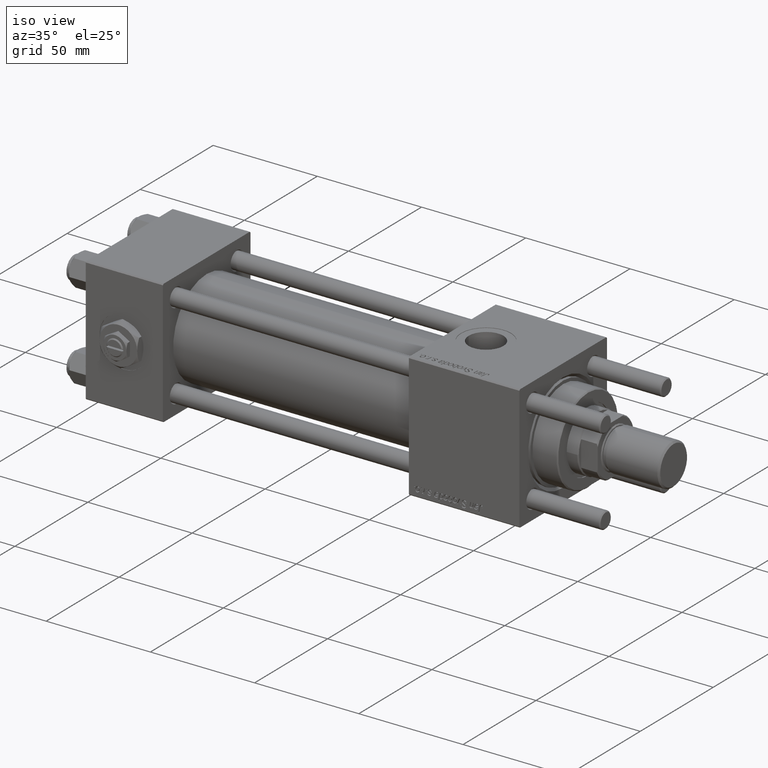
[diagram: clean part render]
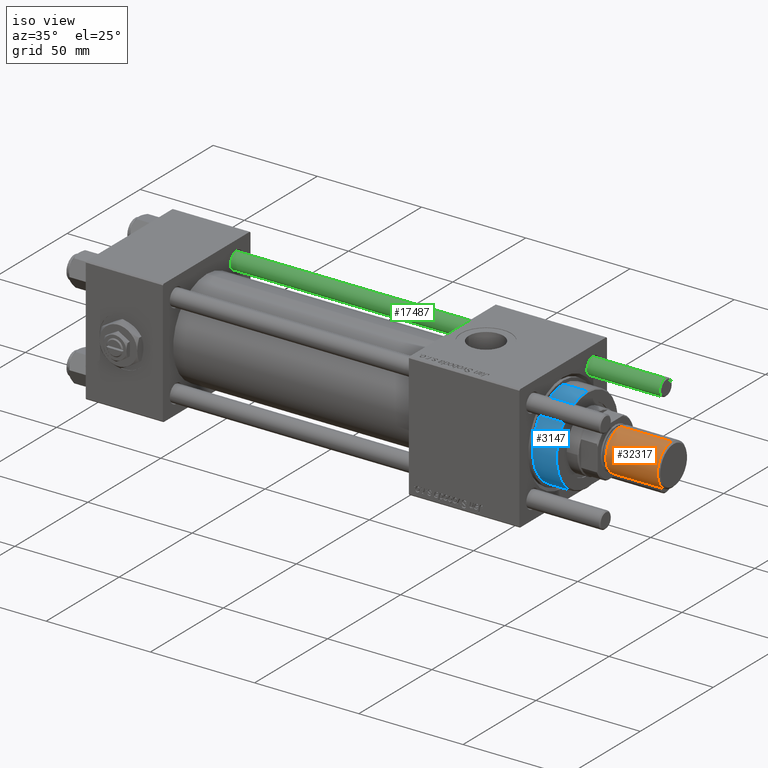
[diagram: same view with three faces highlighted in distinct colors, each labeled with its STEP entity id]
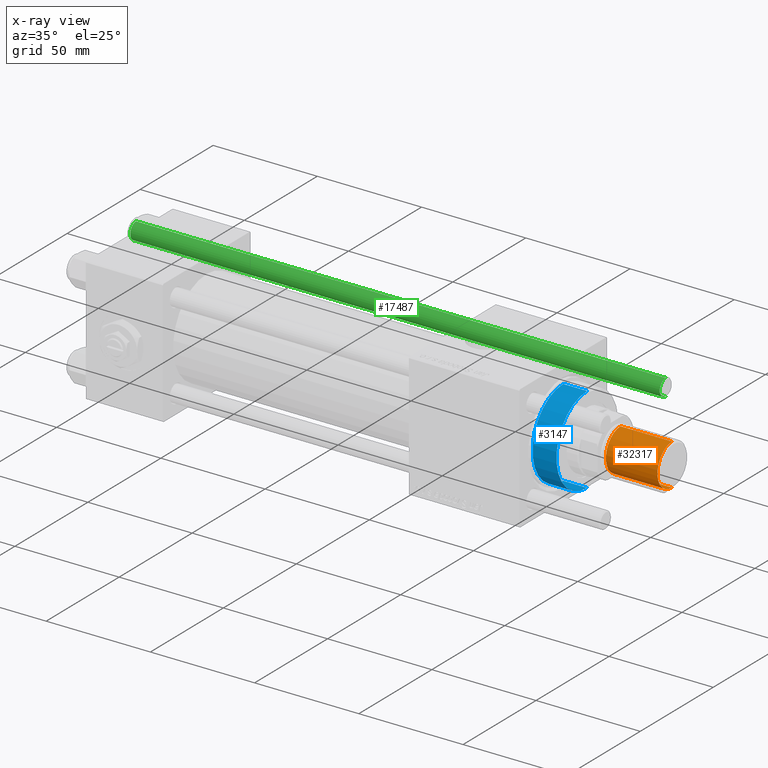
[diagram: x-ray of the same camera — body ghosted, the three highlighted faces saturated]
A machine part, iso view with three faces highlighted in distinct colors.
The next image is the same camera in x-ray (body ghosted, the three faces saturated) — at least one of them is partly hidden behind the body in this view.
Their STEP definitions:

[orange] entity #32317 — the highlighted cylindrical surface (edge-blend (fillet) strip) has radius 10 mm, axis along (1, -0, -0).
#441 = CIRCLE ( 'NONE', #5343, 10.00000000000000000 ) ;
#880 = VERTEX_POINT ( 'NONE', #15549 ) ;
#3507 = VECTOR ( 'NONE', #28050, 1000.000000000000000 ) ;
#3972 = DIRECTION ( 'NONE',  ( 0.000000000000000000, 0.000000000000000000, 1.000000000000000000 ) ) ;
#4390 = DIRECTION ( 'NONE',  ( -1.000000000000000000, 0.000000000000000000, 0.000000000000000000 ) ) ;
#5343 = AXIS2_PLACEMENT_3D ( 'NONE', #30270, #7005, #43388 ) ;
#7005 = DIRECTION ( 'NONE',  ( -0.000000000000000000, -0.000000000000000000, 1.000000000000000000 ) ) ;
#7929 = VERTEX_POINT ( 'NONE', #56062 ) ;
#8610 = FACE_OUTER_BOUND ( 'NONE', #16246, .T. ) ;
#12353 = LINE ( 'NONE', #30560, #12866 ) ;
#12866 = VECTOR ( 'NONE', #38917, 1000.000000000000000 ) ;
#13934 = CIRCLE ( 'NONE', #57744, 10.00000000000000000 ) ;
#15163 = VERTEX_POINT ( 'NONE', #39935 ) ;
#15549 = CARTESIAN_POINT ( 'NONE',  ( 10.00000000000000000, 1.224646799147353256E-15, 0.8000000000000055955 ) ) ;
#16246 = EDGE_LOOP ( 'NONE', ( #37812, #55193, #24467, #40796 ) ) ;
#16779 = AXIS2_PLACEMENT_3D ( 'NONE', #39941, #17282, #4390 ) ;
#17282 = DIRECTION ( 'NONE',  ( -0.000000000000000000, -0.000000000000000000, -1.000000000000000000 ) ) ;
#18154 = CYLINDRICAL_SURFACE ( 'NONE', #16779, 10.00000000000000000 ) ;
#21636 = CARTESIAN_POINT ( 'NONE',  ( -10.00000000000000000, 0.000000000000000000, 25.50000000000000000 ) ) ;
#22203 = DIRECTION ( 'NONE',  ( 1.000000000000000000, 0.000000000000000000, 0.000000000000000000 ) ) ;
#24467 = ORIENTED_EDGE ( 'NONE', *, *, #34359, .T. ) ;
#27202 = EDGE_CURVE ( 'NONE', #38603, #15163, #13934, .T. ) ;
#28050 = DIRECTION ( 'NONE',  ( -0.000000000000000000, -0.000000000000000000, -1.000000000000000000 ) ) ;
#28161 = EDGE_CURVE ( 'NONE', #15163, #880, #12353, .T. ) ;
#29191 = EDGE_CURVE ( 'NONE', #7929, #880, #441, .T. ) ;
#30270 = CARTESIAN_POINT ( 'NONE',  ( 0.000000000000000000, 0.000000000000000000, 0.8000000000000055955 ) ) ;
#30560 = CARTESIAN_POINT ( 'NONE',  ( 10.00000000000000000, 1.224646799147353256E-15, 25.50000000000000000 ) ) ;
#32317 = ADVANCED_FACE ( 'NONE', ( #8610 ), #18154, .T. ) ;
#32500 = LINE ( 'NONE', #32789, #3507 ) ;
#32789 = CARTESIAN_POINT ( 'NONE',  ( -10.00000000000000000, 0.000000000000000000, 25.50000000000000000 ) ) ;
#34359 = EDGE_CURVE ( 'NONE', #38603, #7929, #32500, .T. ) ;
#37812 = ORIENTED_EDGE ( 'NONE', *, *, #28161, .F. ) ;
#38603 = VERTEX_POINT ( 'NONE', #21636 ) ;
#38917 = DIRECTION ( 'NONE',  ( -0.000000000000000000, -0.000000000000000000, -1.000000000000000000 ) ) ;
#39935 = CARTESIAN_POINT ( 'NONE',  ( 10.00000000000000000, 1.224646799147353256E-15, 25.50000000000000000 ) ) ;
#39941 = CARTESIAN_POINT ( 'NONE',  ( 0.000000000000000000, 0.000000000000000000, 25.50000000000000000 ) ) ;
#40796 = ORIENTED_EDGE ( 'NONE', *, *, #29191, .T. ) ;
#43388 = DIRECTION ( 'NONE',  ( 1.000000000000000000, 0.000000000000000000, 0.000000000000000000 ) ) ;
#44872 = CARTESIAN_POINT ( 'NONE',  ( 0.000000000000000000, 0.000000000000000000, 25.50000000000000000 ) ) ;
#55193 = ORIENTED_EDGE ( 'NONE', *, *, #27202, .F. ) ;
#56062 = CARTESIAN_POINT ( 'NONE',  ( -10.00000000000000000, 0.000000000000000000, 0.8000000000000055955 ) ) ;
#57744 = AXIS2_PLACEMENT_3D ( 'NONE', #44872, #3972, #22203 ) ;

[blue] entity #3147 — the highlighted cylindrical surface (partial cylindrical patch) has radius 21 mm, axis along (-1, -0, 0).
#494 = DIRECTION ( 'NONE',  ( -0.000000000000000000, -0.000000000000000000, -1.000000000000000000 ) ) ;
#2463 = EDGE_CURVE ( 'NONE', #6618, #13231, #38661, .T. ) ;
#3147 = ADVANCED_FACE ( 'NONE', ( #50915 ), #41378, .T. ) ;
#6618 = VERTEX_POINT ( 'NONE', #25444 ) ;
#7491 = CARTESIAN_POINT ( 'NONE',  ( 21.00000000000000000, 2.571758278209441661E-15, 28.69999999999999929 ) ) ;
#7619 = CARTESIAN_POINT ( 'NONE',  ( -21.00000000000000000, 0.000000000000000000, 40.70000000000000284 ) ) ;
#7895 = DIRECTION ( 'NONE',  ( 0.000000000000000000, 0.000000000000000000, 1.000000000000000000 ) ) ;
#8971 = DIRECTION ( 'NONE',  ( 0.000000000000000000, 0.000000000000000000, -1.000000000000000000 ) ) ;
#10048 = DIRECTION ( 'NONE',  ( -1.000000000000000000, 0.000000000000000000, 0.000000000000000000 ) ) ;
#13231 = VERTEX_POINT ( 'NONE', #14674 ) ;
#13612 = ORIENTED_EDGE ( 'NONE', *, *, #14363, .F. ) ;
#14363 = EDGE_CURVE ( 'NONE', #27775, #55414, #39624, .T. ) ;
#14674 = CARTESIAN_POINT ( 'NONE',  ( -21.00000000000000000, 0.000000000000000000, 28.69999999999999929 ) ) ;
#16953 = DIRECTION ( 'NONE',  ( -0.000000000000000000, -0.000000000000000000, -1.000000000000000000 ) ) ;
#17075 = CIRCLE ( 'NONE', #48524, 21.00000000000000000 ) ;
#19388 = EDGE_CURVE ( 'NONE', #13231, #55414, #40087, .T. ) ;
#21065 = CARTESIAN_POINT ( 'NONE',  ( 0.000000000000000000, 0.000000000000000000, 28.69999999999999929 ) ) ;
#23535 = VECTOR ( 'NONE', #52967, 1000.000000000000000 ) ;
#25444 = CARTESIAN_POINT ( 'NONE',  ( -21.00000000000000000, 0.000000000000000000, 40.19999999999998863 ) ) ;
#27775 = VERTEX_POINT ( 'NONE', #34575 ) ;
#29619 = AXIS2_PLACEMENT_3D ( 'NONE', #21065, #7895, #43703 ) ;
#34348 = ORIENTED_EDGE ( 'NONE', *, *, #45143, .T. ) ;
#34575 = CARTESIAN_POINT ( 'NONE',  ( 21.00000000000000000, 2.571758278209441661E-15, 40.19999999999998863 ) ) ;
#35442 = CARTESIAN_POINT ( 'NONE',  ( 21.00000000000000000, 2.571758278209441661E-15, 40.70000000000000284 ) ) ;
#36071 = VECTOR ( 'NONE', #16953, 1000.000000000000000 ) ;
#36703 = DIRECTION ( 'NONE',  ( 1.000000000000000000, 0.000000000000000000, 0.000000000000000000 ) ) ;
#36900 = CARTESIAN_POINT ( 'NONE',  ( 0.000000000000000000, 0.000000000000000000, 40.70000000000000284 ) ) ;
#38661 = LINE ( 'NONE', #7619, #23535 ) ;
#39624 = LINE ( 'NONE', #35442, #36071 ) ;
#39706 = AXIS2_PLACEMENT_3D ( 'NONE', #36900, #494, #10048 ) ;
#40087 = CIRCLE ( 'NONE', #29619, 21.00000000000000000 ) ;
#40984 = ORIENTED_EDGE ( 'NONE', *, *, #19388, .T. ) ;
#41378 = CYLINDRICAL_SURFACE ( 'NONE', #39706, 21.00000000000000000 ) ;
#43703 = DIRECTION ( 'NONE',  ( 1.000000000000000000, 0.000000000000000000, 0.000000000000000000 ) ) ;
#45143 = EDGE_CURVE ( 'NONE', #27775, #6618, #17075, .T. ) ;
#45714 = EDGE_LOOP ( 'NONE', ( #13612, #34348, #50479, #40984 ) ) ;
#48524 = AXIS2_PLACEMENT_3D ( 'NONE', #50420, #8971, #36703 ) ;
#50420 = CARTESIAN_POINT ( 'NONE',  ( 0.000000000000000000, 0.000000000000000000, 40.19999999999998863 ) ) ;
#50479 = ORIENTED_EDGE ( 'NONE', *, *, #2463, .T. ) ;
#50915 = FACE_OUTER_BOUND ( 'NONE', #45714, .T. ) ;
#52967 = DIRECTION ( 'NONE',  ( -0.000000000000000000, -0.000000000000000000, -1.000000000000000000 ) ) ;
#55414 = VERTEX_POINT ( 'NONE', #7491 ) ;

[green] entity #17487 — the highlighted cylindrical surface (edge-blend (fillet) strip) has radius 4 mm, axis along (1, -0, -0).
#4920 = CARTESIAN_POINT ( 'NONE',  ( -4.000000000000000000, 0.000000000000000000, 254.4999999999999432 ) ) ;
#7645 = EDGE_CURVE ( 'NONE', #38721, #16402, #51244, .T. ) ;
#11868 = ORIENTED_EDGE ( 'NONE', *, *, #26679, .T. ) ;
#14396 = DIRECTION ( 'NONE',  ( 0.000000000000000000, 0.000000000000000000, -1.000000000000000000 ) ) ;
#15283 = CARTESIAN_POINT ( 'NONE',  ( 0.000000000000000000, 0.000000000000000000, 254.4999999999999432 ) ) ;
#16402 = VERTEX_POINT ( 'NONE', #4920 ) ;
#16618 = VECTOR ( 'NONE', #40689, 1000.000000000000000 ) ;
#17483 = DIRECTION ( 'NONE',  ( -0.000000000000000000, -0.000000000000000000, -1.000000000000000000 ) ) ;
#17487 = ADVANCED_FACE ( 'NONE', ( #19936 ), #42300, .T. ) ;
#18326 = CARTESIAN_POINT ( 'NONE',  ( 4.000000000000000000, 4.898587196589412829E-16, 255.0000000000000000 ) ) ;
#19123 = ORIENTED_EDGE ( 'NONE', *, *, #7645, .T. ) ;
#19936 = FACE_OUTER_BOUND ( 'NONE', #55704, .T. ) ;
#21608 = CIRCLE ( 'NONE', #31127, 4.000000000000000000 ) ;
#21978 = EDGE_CURVE ( 'NONE', #38721, #35973, #45459, .T. ) ;
#25520 = AXIS2_PLACEMENT_3D ( 'NONE', #15283, #14396, #33157 ) ;
#25546 = LINE ( 'NONE', #25849, #31974 ) ;
#25849 = CARTESIAN_POINT ( 'NONE',  ( -4.000000000000000000, 0.000000000000000000, 255.0000000000000000 ) ) ;
#26075 = VERTEX_POINT ( 'NONE', #48651 ) ;
#26679 = EDGE_CURVE ( 'NONE', #16402, #26075, #25546, .T. ) ;
#31127 = AXIS2_PLACEMENT_3D ( 'NONE', #41598, #45787, #55022 ) ;
#31974 = VECTOR ( 'NONE', #17483, 1000.000000000000000 ) ;
#33157 = DIRECTION ( 'NONE',  ( 1.000000000000000000, 0.000000000000000000, 0.000000000000000000 ) ) ;
#33627 = EDGE_CURVE ( 'NONE', #26075, #35973, #21608, .T. ) ;
#33636 = CARTESIAN_POINT ( 'NONE',  ( 0.000000000000000000, 0.000000000000000000, 255.0000000000000000 ) ) ;
#35973 = VERTEX_POINT ( 'NONE', #51323 ) ;
#36222 = CARTESIAN_POINT ( 'NONE',  ( 4.000000000000000000, 4.898587196589412829E-16, 254.4999999999999432 ) ) ;
#37309 = ORIENTED_EDGE ( 'NONE', *, *, #21978, .F. ) ;
#38721 = VERTEX_POINT ( 'NONE', #36222 ) ;
#40689 = DIRECTION ( 'NONE',  ( -0.000000000000000000, -0.000000000000000000, -1.000000000000000000 ) ) ;
#41598 = CARTESIAN_POINT ( 'NONE',  ( 0.000000000000000000, 0.000000000000000000, 0.5000000000000559552 ) ) ;
#42300 = CYLINDRICAL_SURFACE ( 'NONE', #45745, 4.000000000000000000 ) ;
#44960 = ORIENTED_EDGE ( 'NONE', *, *, #33627, .T. ) ;
#45459 = LINE ( 'NONE', #18326, #16618 ) ;
#45745 = AXIS2_PLACEMENT_3D ( 'NONE', #33636, #50940, #52119 ) ;
#45787 = DIRECTION ( 'NONE',  ( -0.000000000000000000, -0.000000000000000000, 1.000000000000000000 ) ) ;
#48651 = CARTESIAN_POINT ( 'NONE',  ( -4.000000000000000000, 0.000000000000000000, 0.5000000000000559552 ) ) ;
#50940 = DIRECTION ( 'NONE',  ( -0.000000000000000000, -0.000000000000000000, -1.000000000000000000 ) ) ;
#51244 = CIRCLE ( 'NONE', #25520, 4.000000000000000000 ) ;
#51323 = CARTESIAN_POINT ( 'NONE',  ( 4.000000000000000000, 4.898587196589412829E-16, 0.5000000000000559552 ) ) ;
#52119 = DIRECTION ( 'NONE',  ( -1.000000000000000000, 0.000000000000000000, 0.000000000000000000 ) ) ;
#55022 = DIRECTION ( 'NONE',  ( 1.000000000000000000, 0.000000000000000000, 0.000000000000000000 ) ) ;
#55704 = EDGE_LOOP ( 'NONE', ( #37309, #19123, #11868, #44960 ) ) ;